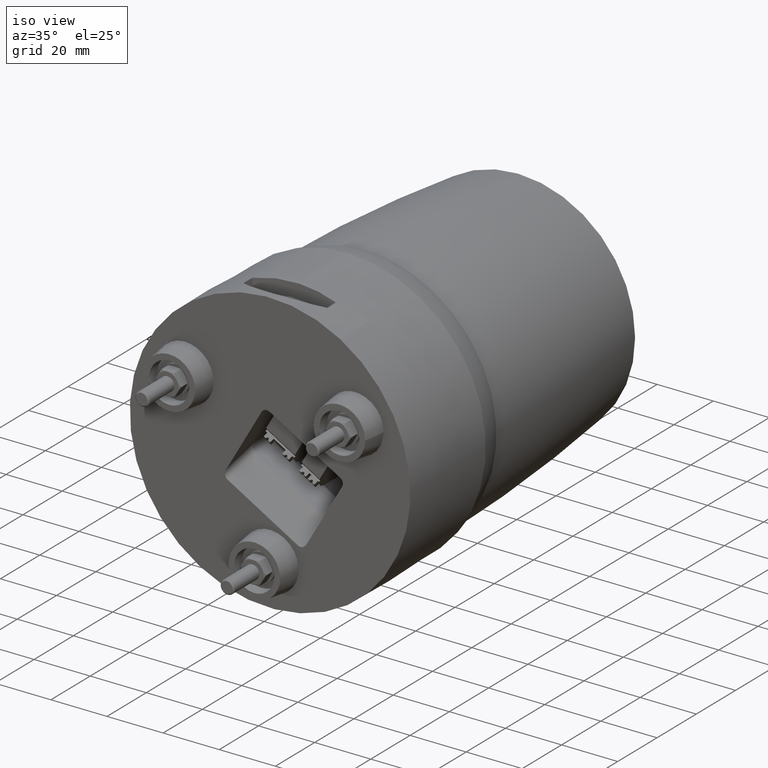
[diagram: clean part render]
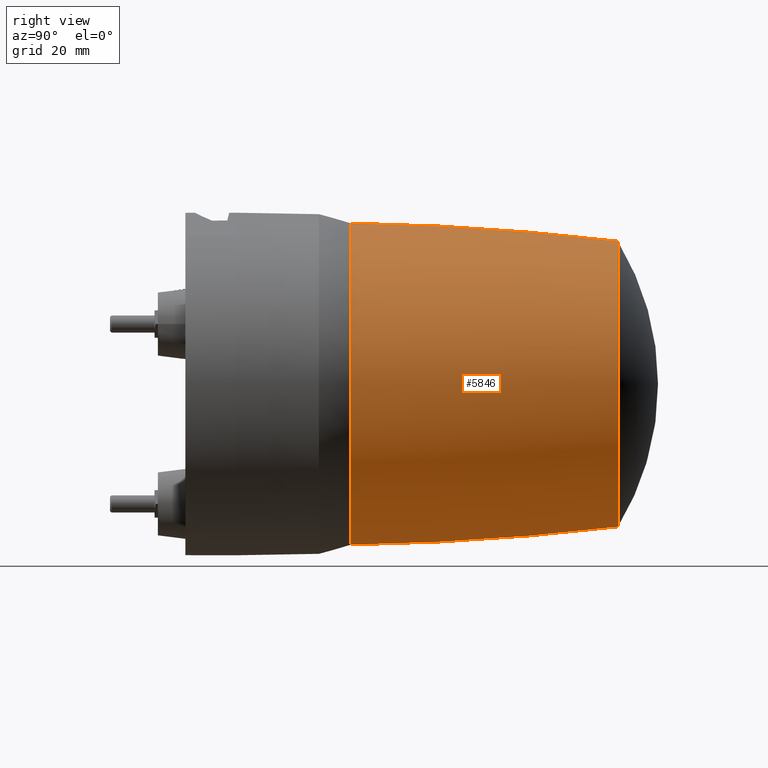
[diagram: tour spotlight — one face highlighted and labeled with its STEP entity id]
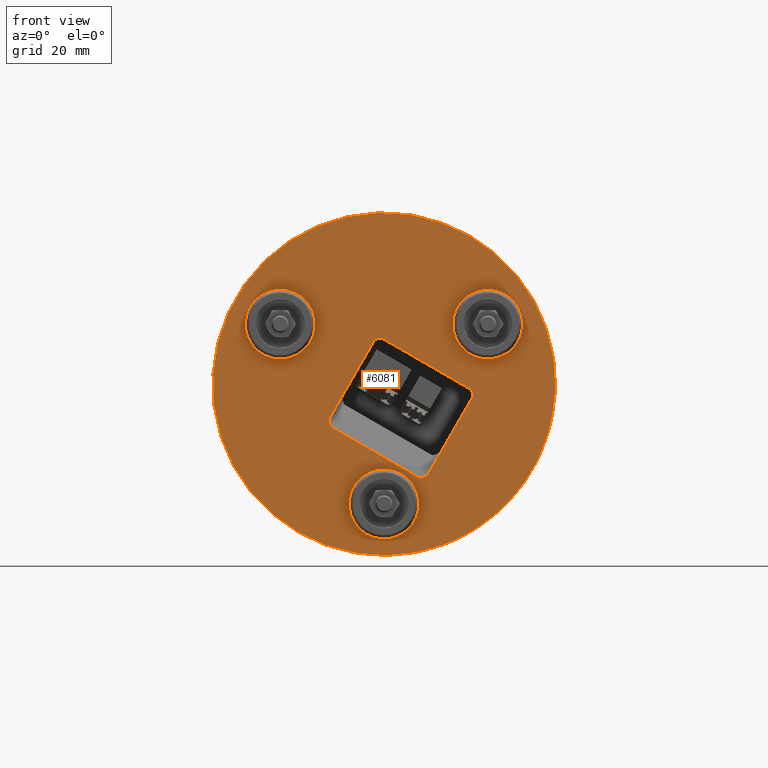
[diagram: tour spotlight — one face highlighted and labeled with its STEP entity id]
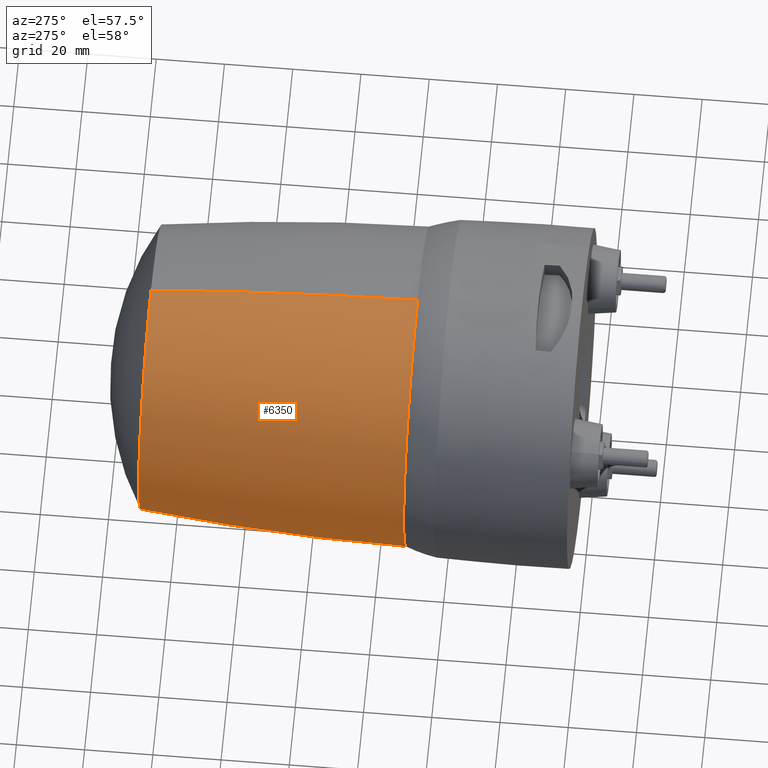
[diagram: tour spotlight — one face highlighted and labeled with its STEP entity id]
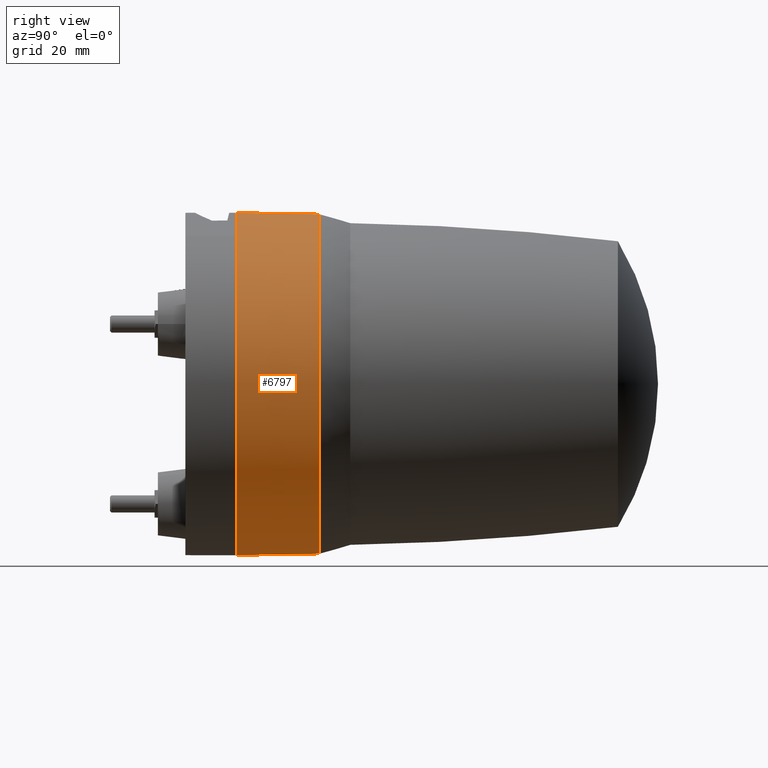
[diagram: tour spotlight — one face highlighted and labeled with its STEP entity id]
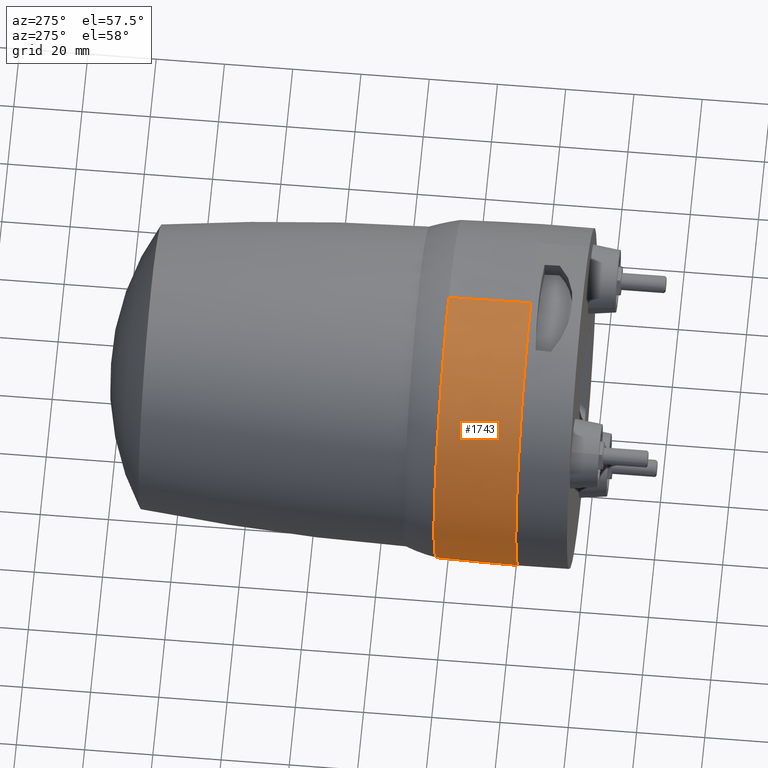
[diagram: tour spotlight — one face highlighted and labeled with its STEP entity id]
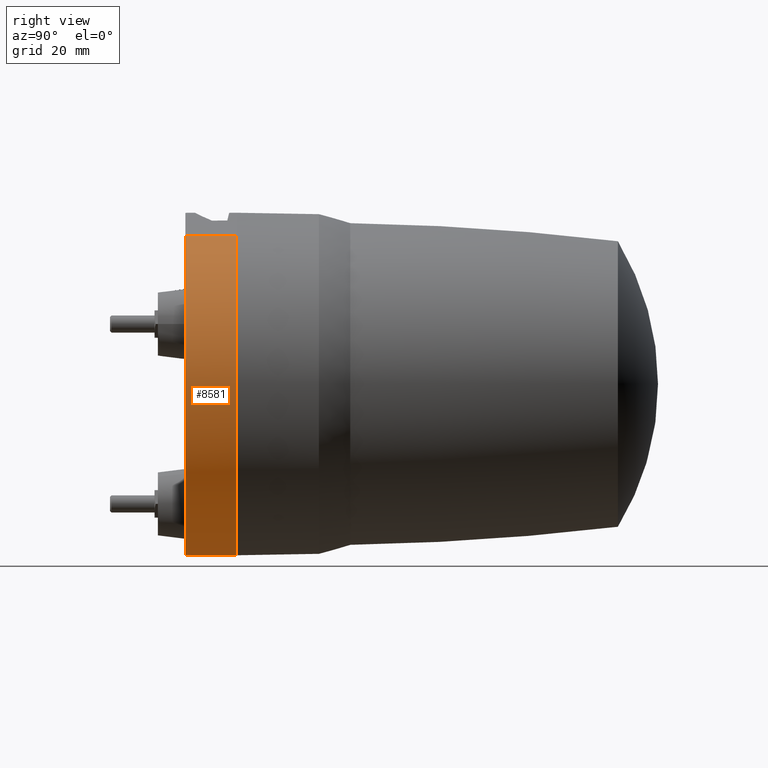
[diagram: tour spotlight — one face highlighted and labeled with its STEP entity id]
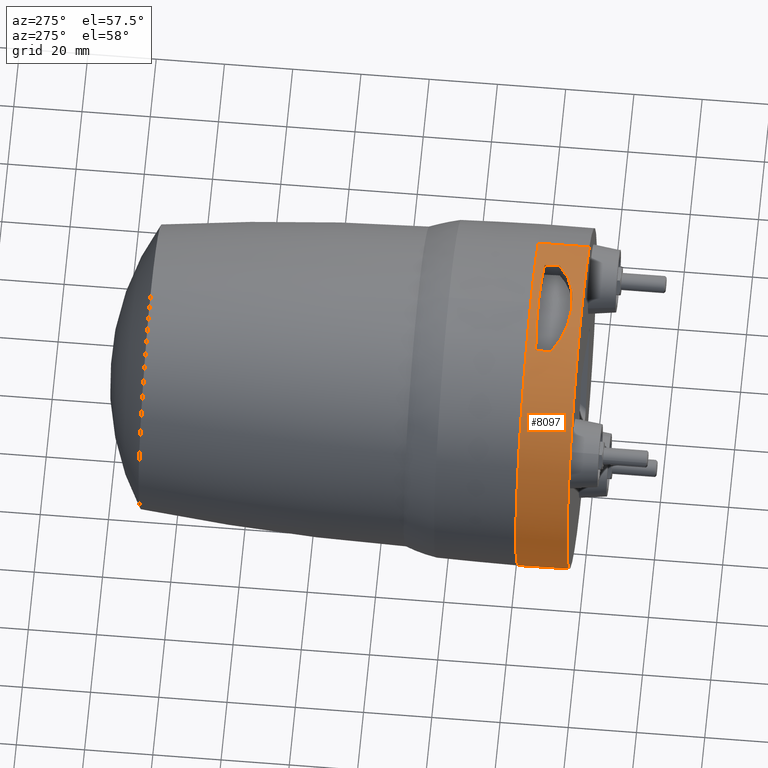
[diagram: tour spotlight — one face highlighted and labeled with its STEP entity id]
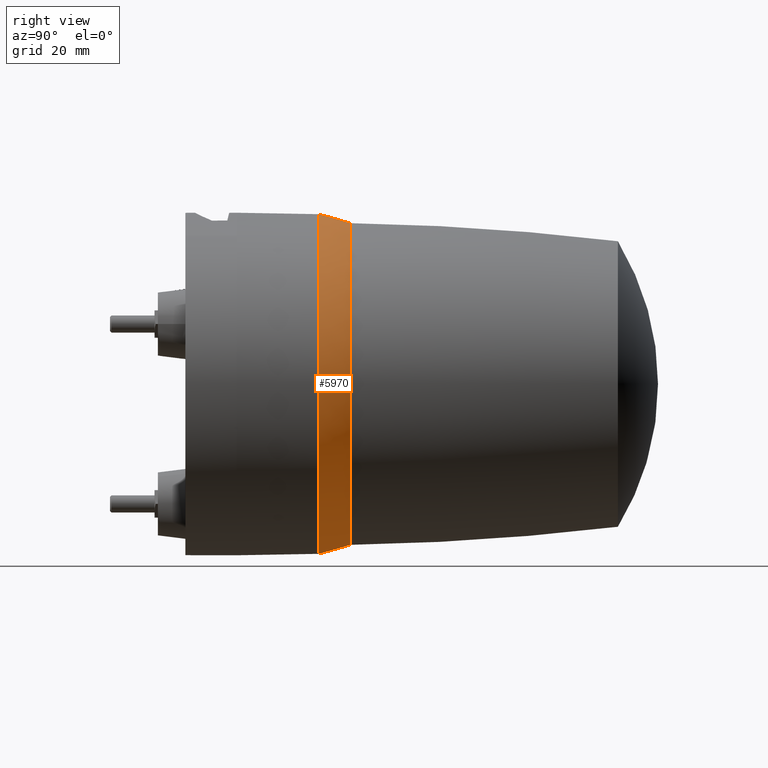
[diagram: tour spotlight — one face highlighted and labeled with its STEP entity id]
A machine part: a face-by-face anatomy tour. The part has 270 B-rep faces; the first image is the clean iso view, then the 8 largest visible faces are spotlighted one at a time (largest first), each with its STEP entity span.

Face 1 — right view, entity #5846. In plain terms, the highlighted toroidal blend (fillet) surface has major radius 712.949 mm and minor (blend) radius 760 mm.
Definition (entity closure, byte-faithful):
#421 = DIRECTION ( 'NONE',  ( 0.000000000000000000, 3.982591216739360048E-17, -1.000000000000000000 ) ) ;
#453 = ORIENTED_EDGE ( 'NONE', *, *, #8536, .F. ) ;
#503 = VERTEX_POINT ( 'NONE', #2207 ) ;
#598 = DIRECTION ( 'NONE',  ( 0.000000000000000000, 0.000000000000000000, -1.000000000000000000 ) ) ;
#755 = DIRECTION ( 'NONE',  ( 0.000000000000000000, -1.000000000000000000, 0.000000000000000000 ) ) ;
#901 = VERTEX_POINT ( 'NONE', #7473 ) ;
#1297 = CARTESIAN_POINT ( 'NONE',  ( 0.000000000000000000, 39.10551928601615401, -7.307193957557699784E-31 ) ) ;
#1670 = EDGE_CURVE ( 'NONE', #5041, #503, #3356, .T. ) ;
#1823 = DIRECTION ( 'NONE',  ( -1.000000000000000000, 4.877267585892220197E-33, -1.224646799147353207E-16 ) ) ;
#2072 = ORIENTED_EDGE ( 'NONE', *, *, #7259, .T. ) ;
#2207 = CARTESIAN_POINT ( 'NONE',  ( 0.000000000000000000, 129.2833406732575838, -41.68195516647119803 ) ) ;
#3282 = CARTESIAN_POINT ( 'NONE',  ( 0.000000000000000000, 39.10551928601612559, 712.9490543539769760 ) ) ;
#3356 = CIRCLE ( 'NONE', #4488, 760.0000000000000000 ) ;
#3390 = CIRCLE ( 'NONE', #5801, 41.68195516647119803 ) ;
#3707 = AXIS2_PLACEMENT_3D ( 'NONE', #1297, #4666, #421 ) ;
#3854 = CARTESIAN_POINT ( 'NONE',  ( 0.000000000000000000, 51.14189884939369790, -7.307193957557699784E-31 ) ) ;
#4488 = AXIS2_PLACEMENT_3D ( 'NONE', #3282, #6521, #598 ) ;
#4666 = DIRECTION ( 'NONE',  ( 0.000000000000000000, 1.000000000000000000, 3.982591216739360048E-17 ) ) ;
#4791 = CARTESIAN_POINT ( 'NONE',  ( -5.427486597387500927E-15, 129.2833406732575838, 41.68195516647119803 ) ) ;
#4844 = CIRCLE ( 'NONE', #5833, 760.0000000000000000 ) ;
#5041 = VERTEX_POINT ( 'NONE', #6298 ) ;
#5139 = DIRECTION ( 'NONE',  ( 0.000000000000000000, -1.000000000000000000, 0.000000000000000000 ) ) ;
#5389 = ORIENTED_EDGE ( 'NONE', *, *, #1670, .T. ) ;
#5801 = AXIS2_PLACEMENT_3D ( 'NONE', #6860, #755, #7565 ) ;
#5833 = AXIS2_PLACEMENT_3D ( 'NONE', #7928, #1823, #8507 ) ;
#5836 = EDGE_CURVE ( 'NONE', #901, #5901, #4844, .T. ) ;
#5846 = ADVANCED_FACE ( 'NONE', ( #8021 ), #7525, .T. ) ;
#5901 = VERTEX_POINT ( 'NONE', #4791 ) ;
#6273 = ORIENTED_EDGE ( 'NONE', *, *, #5836, .F. ) ;
#6298 = CARTESIAN_POINT ( 'NONE',  ( 0.000000000000000000, 51.14189884939369790, -46.95562754173349873 ) ) ;
#6521 = DIRECTION ( 'NONE',  ( 1.000000000000000000, -0.000000000000000000, 0.000000000000000000 ) ) ;
#6860 = CARTESIAN_POINT ( 'NONE',  ( 0.000000000000000000, 129.2833406732575838, 1.795706997007590157E-15 ) ) ;
#7073 = AXIS2_PLACEMENT_3D ( 'NONE', #3854, #5139, #8501 ) ;
#7259 = EDGE_CURVE ( 'NONE', #503, #5901, #3390, .T. ) ;
#7473 = CARTESIAN_POINT ( 'NONE',  ( -5.911168399144569153E-15, 51.14189884939369790, 46.95562754173349163 ) ) ;
#7525 = TOROIDAL_SURFACE ( 'NONE', #3707, -712.9490543539769760, 760.0000000000000000 ) ;
#7565 = DIRECTION ( 'NONE',  ( 0.000000000000000000, 0.000000000000000000, -1.000000000000000000 ) ) ;
#7772 = CIRCLE ( 'NONE', #7073, 46.95562754173349873 ) ;
#7832 = EDGE_LOOP ( 'NONE', ( #6273, #453, #5389, #2072 ) ) ;
#7928 = CARTESIAN_POINT ( 'NONE',  ( 8.731107773697301526E-14, 39.10551928601618243, -712.9490543539769760 ) ) ;
#8021 = FACE_OUTER_BOUND ( 'NONE', #7832, .T. ) ;
#8501 = DIRECTION ( 'NONE',  ( 0.000000000000000000, 0.000000000000000000, -1.000000000000000000 ) ) ;
#8507 = DIRECTION ( 'NONE',  ( -1.224646799147353207E-16, 0.000000000000000000, 1.000000000000000000 ) ) ;
#8536 = EDGE_CURVE ( 'NONE', #5041, #901, #7772, .T. ) ;

Face 2 — front view, entity #6081. In plain terms, the highlighted planar face has unit normal (0, -1, 0).
Definition (entity closure, byte-faithful):
#142 = ORIENTED_EDGE ( 'NONE', *, *, #4352, .T. ) ;
#176 = CARTESIAN_POINT ( 'NONE',  ( 12.29102191352310314, 2.999999999999995115, -27.28402618200388474 ) ) ;
#196 = DIRECTION ( 'NONE',  ( 1.017949417541609884E-16, -1.000000000000000000, 1.275512456123401821E-16 ) ) ;
#201 =( BOUNDED_CURVE ( )  B_SPLINE_CURVE ( 3, ( #6986, #4197, #176, #5569 ),
 .UNSPECIFIED., .F., .T. ) 
 B_SPLINE_CURVE_WITH_KNOTS ( ( 4, 4 ),
 ( 3.113851352034644915, 4.660961013869460601 ),
 .UNSPECIFIED. ) 
 CURVE ( )  GEOMETRIC_REPRESENTATION_ITEM ( )  RATIONAL_B_SPLINE_CURVE ( ( 1.000000000000000000, 0.8102876638024699707, 0.8102876638024699707, 1.000000000000000000 ) ) 
 REPRESENTATION_ITEM ( '' )  );
#202 = CARTESIAN_POINT ( 'NONE',  ( 7.125645922791279668E-16, 3.000000000000000000, 8.216151912067980378E-16 ) ) ;
#287 = VERTEX_POINT ( 'NONE', #3145 ) ;
#317 = CIRCLE ( 'NONE', #5412, 10.20015603023941964 ) ;
#408 = FACE_BOUND ( 'NONE', #476, .T. ) ;
#451 = DIRECTION ( 'NONE',  ( 0.000000000000000000, 1.275512456123404287E-16, 1.000000000000000000 ) ) ;
#454 = CARTESIAN_POINT ( 'NONE',  ( 42.43524477745734913, 3.000000000000000000, -24.50000001382199954 ) ) ;
#475 = DIRECTION ( 'NONE',  ( 0.000000000000000000, 1.275512456010996045E-16, 1.000000000000000000 ) ) ;
#476 = EDGE_LOOP ( 'NONE', ( #6382, #5585 ) ) ;
#500 = FACE_BOUND ( 'NONE', #3633, .T. ) ;
#504 = LINE ( 'NONE', #3185, #5759 ) ;
#597 =( BOUNDED_CURVE ( )  B_SPLINE_CURVE ( 3, ( #7633, #1699, #8259, #2889 ),
 .UNSPECIFIED., .F., .T. ) 
 B_SPLINE_CURVE_WITH_KNOTS ( ( 4, 4 ),
 ( 5.498396131378139984, 7.067974482981029816 ),
 .UNSPECIFIED. ) 
 CURVE ( )  GEOMETRIC_REPRESENTATION_ITEM ( )  RATIONAL_B_SPLINE_CURVE ( ( 1.000000000000000000, 0.8050248461985559656, 0.8050248461985559656, 1.000000000000000000 ) ) 
 REPRESENTATION_ITEM ( '' )  );
#619 = DIRECTION ( 'NONE',  ( 1.017949417541609884E-16, -1.000000000000000000, 1.275512456010991854E-16 ) ) ;
#703 = DIRECTION ( 'NONE',  ( 1.017949417541607912E-16, -1.000000000000000000, 1.275512456109955934E-16 ) ) ;
#704 = LINE ( 'NONE', #6019, #1972 ) ;
#722 = EDGE_CURVE ( 'NONE', #7785, #287, #7332, .T. ) ;
#834 = VERTEX_POINT ( 'NONE', #1534 ) ;
#957 = LINE ( 'NONE', #3749, #4907 ) ;
#1019 = AXIS2_PLACEMENT_3D ( 'NONE', #6200, #6867, #7490 ) ;
#1236 = DIRECTION ( 'NONE',  ( -1.000000000000000000, -1.017949417784775889E-16, 0.000000000000000000 ) ) ;
#1284 = CIRCLE ( 'NONE', #6514, 50.00000000000002842 ) ;
#1494 = VERTEX_POINT ( 'NONE', #4179 ) ;
#1534 = CARTESIAN_POINT ( 'NONE',  ( -25.21081111474535064, 3.000000000000000000, 8.666405763325039757 ) ) ;
#1580 = CARTESIAN_POINT ( 'NONE',  ( 10.05212458675350007, 3.000000000000000000, -27.25426747419535189 ) ) ;
#1699 = CARTESIAN_POINT ( 'NONE',  ( 25.95902521216428838, 3.000000000000003109, -1.955095421041245674 ) ) ;
#1721 = FACE_BOUND ( 'NONE', #5815, .T. ) ;
#1765 = EDGE_LOOP ( 'NONE', ( #7872, #2561 ) ) ;
#1786 = CARTESIAN_POINT ( 'NONE',  ( -2.379841073571868915, 3.000000000000003109, 13.45069496437858092 ) ) ;
#1828 = EDGE_CURVE ( 'NONE', #4338, #8510, #201, .T. ) ;
#1856 = FACE_BOUND ( 'NONE', #7986, .T. ) ;
#1866 = CIRCLE ( 'NONE', #1019, 10.20015602944804023 ) ;
#1921 = VERTEX_POINT ( 'NONE', #2097 ) ;
#1925 = CARTESIAN_POINT ( 'NONE',  ( 33.14683192544805479, 3.000000000000000000, -40.58800298307615151 ) ) ;
#1965 = VERTEX_POINT ( 'NONE', #6806 ) ;
#1972 = VECTOR ( 'NONE', #3348, 1000.000000000000227 ) ;
#2047 = EDGE_CURVE ( 'NONE', #1965, #4010, #704, .T. ) ;
#2097 = CARTESIAN_POINT ( 'NONE',  ( 24.94477580233754921, 3.000000000000000000, -1.369518250811852189 ) ) ;
#2130 = ORIENTED_EDGE ( 'NONE', *, *, #6659, .F. ) ;
#2411 = VERTEX_POINT ( 'NONE', #8286 ) ;
#2493 = DIRECTION ( 'NONE',  ( 1.017949417541609884E-16, -1.000000000000000000, 1.275512456010993826E-16 ) ) ;
#2561 = ORIENTED_EDGE ( 'NONE', *, *, #8325, .T. ) ;
#2566 = VECTOR ( 'NONE', #4447, 1000.000000000000000 ) ;
#2568 = PLANE ( 'NONE',  #2997 ) ;
#2656 = CARTESIAN_POINT ( 'NONE',  ( -0.2350317275569270004, 3.000000000000000000, 13.16805041565109846 ) ) ;
#2692 = AXIS2_PLACEMENT_3D ( 'NONE', #8157, #5461, #5296 ) ;
#2707 = AXIS2_PLACEMENT_3D ( 'NONE', #3914, #2493, #475 ) ;
#2720 = EDGE_CURVE ( 'NONE', #8510, #5767, #504, .T. ) ;
#2889 = CARTESIAN_POINT ( 'NONE',  ( 25.67638066343684855, 3.000000000000000000, -4.099904767056184340 ) ) ;
#2992 = ORIENTED_EDGE ( 'NONE', *, *, #5851, .F. ) ;
#2997 = AXIS2_PLACEMENT_3D ( 'NONE', #454, #3090, #1236 ) ;
#3090 = DIRECTION ( 'NONE',  ( 1.017949417784775889E-16, -1.000000000000000000, 1.173735987859451769E-16 ) ) ;
#3145 = CARTESIAN_POINT ( 'NONE',  ( 20.11073310858724739, 3.000000000000000000, 17.49999999326190192 ) ) ;
#3185 = CARTESIAN_POINT ( 'NONE',  ( 21.03259633168629961, 3.000000000000000000, -12.14317516299012034 ) ) ;
#3193 = ORIENTED_EDGE ( 'NONE', *, *, #5554, .F. ) ;
#3292 = LINE ( 'NONE', #1925, #2566 ) ;
#3348 = DIRECTION ( 'NONE',  ( 0.5000000002820810252, 1.525459891324350004E-16, 0.8660254036215790929 ) ) ;
#3492 = EDGE_CURVE ( 'NONE', #1921, #5767, #597, .T. ) ;
#3546 = CARTESIAN_POINT ( 'NONE',  ( 30.31088913792779849, 3.000000000000000000, 17.49999998973280313 ) ) ;
#3562 = CARTESIAN_POINT ( 'NONE',  ( -16.35077699371500159, 2.999999999999995115, -10.74767586039591549 ) ) ;
#3633 = EDGE_LOOP ( 'NONE', ( #8517, #2992 ) ) ;
#3749 = CARTESIAN_POINT ( 'NONE',  ( -3.876012430565844991, 3.000000000000000000, 15.27017160622879999 ) ) ;
#3760 = CARTESIAN_POINT ( 'NONE',  ( 25.00000001410409922, 3.000000000000007994, 43.30127018107892667 ) ) ;
#3778 = ORIENTED_EDGE ( 'NONE', *, *, #4841, .T. ) ;
#3781 = CARTESIAN_POINT ( 'NONE',  ( 40.51104516726829985, 3.000000000000000000, 17.49999998620370079 ) ) ;
#3864 =( BOUNDED_CURVE ( )  B_SPLINE_CURVE ( 3, ( #7891, #1786, #5862, #4487 ),
 .UNSPECIFIED., .F., .T. ) 
 B_SPLINE_CURVE_WITH_KNOTS ( ( 4, 4 ),
 ( 5.498396131378139984, 7.067974482981029816 ),
 .UNSPECIFIED. ) 
 CURVE ( )  GEOMETRIC_REPRESENTATION_ITEM ( )  RATIONAL_B_SPLINE_CURVE ( ( 1.000000000000000000, 0.8050248461985559656, 0.8050248461985559656, 1.000000000000000000 ) ) 
 REPRESENTATION_ITEM ( '' )  );
#3914 = CARTESIAN_POINT ( 'NONE',  ( -30.31088912675524938, 3.000000000000000000, 17.50000000987284920 ) ) ;
#3967 = EDGE_CURVE ( 'NONE', #287, #7785, #7847, .T. ) ;
#4010 = VERTEX_POINT ( 'NONE', #6295 ) ;
#4030 = DIRECTION ( 'NONE',  ( 0.000000000000000000, 1.275512456123404287E-16, 1.000000000000000000 ) ) ;
#4144 = ORIENTED_EDGE ( 'NONE', *, *, #2047, .T. ) ;
#4173 = ORIENTED_EDGE ( 'NONE', *, *, #4888, .F. ) ;
#4179 = CARTESIAN_POINT ( 'NONE',  ( -15.20555653463759960, 3.000000000000000000, -12.67173846868521991 ) ) ;
#4197 = CARTESIAN_POINT ( 'NONE',  ( 11.04811015143738118, 2.999999999999995115, -27.82930000850713270 ) ) ;
#4338 = VERTEX_POINT ( 'NONE', #1580 ) ;
#4352 = EDGE_CURVE ( 'NONE', #8644, #1921, #957, .T. ) ;
#4447 = DIRECTION ( 'NONE',  ( 0.8660254036215786488, 3.823967277254768365E-18, -0.5000000002820818024 ) ) ;
#4456 = DIRECTION ( 'NONE',  ( 0.8660254036215786488, 2.947020611425958334E-17, -0.5000000002820818024 ) ) ;
#4487 = CARTESIAN_POINT ( 'NONE',  ( -0.2350317275569270004, 3.000000000000000000, 13.16805041565109846 ) ) ;
#4692 = CARTESIAN_POINT ( 'NONE',  ( -1.117252554636979909E-08, 3.000000000000000000, -34.99999999960564878 ) ) ;
#4782 = CARTESIAN_POINT ( 'NONE',  ( -25.00000001410410277, 2.999999999999992450, -43.30127018107895509 ) ) ;
#4841 = EDGE_CURVE ( 'NONE', #4010, #8644, #3864, .T. ) ;
#4868 = ORIENTED_EDGE ( 'NONE', *, *, #1828, .F. ) ;
#4881 = EDGE_CURVE ( 'NONE', #834, #5107, #5670, .T. ) ;
#4888 = EDGE_CURVE ( 'NONE', #1494, #4338, #3292, .T. ) ;
#4907 = VECTOR ( 'NONE', #4456, 1000.000000000000000 ) ;
#4956 = CIRCLE ( 'NONE', #2692, 50.00000000000002842 ) ;
#5071 = AXIS2_PLACEMENT_3D ( 'NONE', #7433, #5321, #4030 ) ;
#5107 = VERTEX_POINT ( 'NONE', #5589 ) ;
#5147 = CARTESIAN_POINT ( 'NONE',  ( 25.67638066343684855, 3.000000000000000000, -4.099904767056184340 ) ) ;
#5254 = ORIENTED_EDGE ( 'NONE', *, *, #3492, .T. ) ;
#5296 = DIRECTION ( 'NONE',  ( -0.5000000002820818024, -1.561251128379125399E-16, -0.8660254036215786488 ) ) ;
#5321 = DIRECTION ( 'NONE',  ( 1.017949417541609884E-16, -1.000000000000000000, 1.275512456123401821E-16 ) ) ;
#5412 = AXIS2_PLACEMENT_3D ( 'NONE', #7287, #619, #6927 ) ;
#5461 = DIRECTION ( 'NONE',  ( 1.035845036079089825E-16, -1.000000000000000000, 1.204732107954749883E-16 ) ) ;
#5554 = EDGE_CURVE ( 'NONE', #5107, #834, #317, .T. ) ;
#5569 = CARTESIAN_POINT ( 'NONE',  ( 13.07347279079267999, 3.000000000000000000, -25.92878150916559932 ) ) ;
#5585 = ORIENTED_EDGE ( 'NONE', *, *, #722, .F. ) ;
#5589 = CARTESIAN_POINT ( 'NONE',  ( -35.41096713876520141, 3.000000000000000000, 26.33359425642070306 ) ) ;
#5603 = CARTESIAN_POINT ( 'NONE',  ( -16.20154209932147182, 2.999999999999995115, -12.09670593437346930 ) ) ;
#5670 = CIRCLE ( 'NONE', #2707, 10.20015603023941964 ) ;
#5696 = CARTESIAN_POINT ( 'NONE',  ( -15.56832611644539988, 3.000000000000000000, -9.392431187557612304 ) ) ;
#5759 = VECTOR ( 'NONE', #6120, 1000.000000000000000 ) ;
#5767 = VERTEX_POINT ( 'NONE', #5147 ) ;
#5802 = CARTESIAN_POINT ( 'NONE',  ( 13.07347279079267999, 3.000000000000000000, -25.92878150916559932 ) ) ;
#5815 = EDGE_LOOP ( 'NONE', ( #7598, #3193 ) ) ;
#5851 = EDGE_CURVE ( 'NONE', #7366, #2411, #1866, .T. ) ;
#5862 = CARTESIAN_POINT ( 'NONE',  ( -1.249281137383720042, 3.000000000000003109, 13.75362758588051726 ) ) ;
#6019 = CARTESIAN_POINT ( 'NONE',  ( -16.89761542756110302, 3.000000000000000000, -11.69482781063627996 ) ) ;
#6060 = VERTEX_POINT ( 'NONE', #3760 ) ;
#6081 = ADVANCED_FACE ( 'NONE', ( #500, #408, #1721, #1856, #7870 ), #2568, .T. ) ;
#6120 = DIRECTION ( 'NONE',  ( 0.5000000002820818024, 1.525459891324349264E-16, 0.8660254036215786488 ) ) ;
#6200 = CARTESIAN_POINT ( 'NONE',  ( -1.117252554636979909E-08, 3.000000000000000000, -34.99999999960564878 ) ) ;
#6217 = DIRECTION ( 'NONE',  ( 1.035845036079089825E-16, -1.000000000000000000, 1.204732107954749883E-16 ) ) ;
#6295 = CARTESIAN_POINT ( 'NONE',  ( -2.965418243801264619, 3.000000000000000000, 12.43644555455179912 ) ) ;
#6382 = ORIENTED_EDGE ( 'NONE', *, *, #3967, .F. ) ;
#6514 = AXIS2_PLACEMENT_3D ( 'NONE', #202, #6217, #8295 ) ;
#6659 = EDGE_CURVE ( 'NONE', #1965, #1494, #7943, .T. ) ;
#6806 = CARTESIAN_POINT ( 'NONE',  ( -15.56832611644539988, 3.000000000000000000, -9.392431187557612304 ) ) ;
#6867 = DIRECTION ( 'NONE',  ( 1.017949417541609884E-16, -1.000000000000000000, 1.275512456109953715E-16 ) ) ;
#6927 = DIRECTION ( 'NONE',  ( 1.020409964808796836E-15, 1.275512456010996045E-16, 1.000000000000000000 ) ) ;
#6986 = CARTESIAN_POINT ( 'NONE',  ( 10.05212458675350007, 3.000000000000000000, -27.25426747419535189 ) ) ;
#7030 = EDGE_CURVE ( 'NONE', #7272, #6060, #1284, .T. ) ;
#7074 = CARTESIAN_POINT ( 'NONE',  ( -5.100078028704530198, 3.000000000000000000, -43.83359424205150390 ) ) ;
#7272 = VERTEX_POINT ( 'NONE', #4782 ) ;
#7287 = CARTESIAN_POINT ( 'NONE',  ( -30.31088912675524938, 3.000000000000000000, 17.50000000987284920 ) ) ;
#7332 = CIRCLE ( 'NONE', #5071, 10.20015602934050136 ) ;
#7366 = VERTEX_POINT ( 'NONE', #7074 ) ;
#7433 = CARTESIAN_POINT ( 'NONE',  ( 30.31088913792779849, 3.000000000000000000, 17.49999998973280313 ) ) ;
#7490 = DIRECTION ( 'NONE',  ( 8.881784197391207963E-16, 1.275512456109956673E-16, 1.000000000000000000 ) ) ;
#7571 = EDGE_CURVE ( 'NONE', #2411, #7366, #8215, .T. ) ;
#7594 = CARTESIAN_POINT ( 'NONE',  ( -15.20555653463759960, 3.000000000000000000, -12.67173846868521991 ) ) ;
#7598 = ORIENTED_EDGE ( 'NONE', *, *, #4881, .F. ) ;
#7633 = CARTESIAN_POINT ( 'NONE',  ( 24.94477580233754921, 3.000000000000000000, -1.369518250811852189 ) ) ;
#7713 = AXIS2_PLACEMENT_3D ( 'NONE', #3546, #196, #451 ) ;
#7785 = VERTEX_POINT ( 'NONE', #3781 ) ;
#7847 = CIRCLE ( 'NONE', #7713, 10.20015602934050136 ) ;
#7870 = FACE_OUTER_BOUND ( 'NONE', #1765, .T. ) ;
#7872 = ORIENTED_EDGE ( 'NONE', *, *, #7030, .T. ) ;
#7891 = CARTESIAN_POINT ( 'NONE',  ( -2.965418243801264619, 3.000000000000000000, 12.43644555455179912 ) ) ;
#7923 = AXIS2_PLACEMENT_3D ( 'NONE', #4692, #703, #8050 ) ;
#7943 =( BOUNDED_CURVE ( )  B_SPLINE_CURVE ( 3, ( #5696, #3562, #5603, #7594 ),
 .UNSPECIFIED., .F., .T. ) 
 B_SPLINE_CURVE_WITH_KNOTS ( ( 4, 4 ),
 ( 4.763816946899919635, 6.310926608734740206 ),
 .UNSPECIFIED. ) 
 CURVE ( )  GEOMETRIC_REPRESENTATION_ITEM ( )  RATIONAL_B_SPLINE_CURVE ( ( 1.000000000000000000, 0.8102876638024699707, 0.8102876638024699707, 1.000000000000000000 ) ) 
 REPRESENTATION_ITEM ( '' )  );
#7986 = EDGE_LOOP ( 'NONE', ( #5254, #8103, #4868, #4173, #2130, #4144, #3778, #142 ) ) ;
#8050 = DIRECTION ( 'NONE',  ( 0.000000000000000000, 1.275512456109956673E-16, 1.000000000000000000 ) ) ;
#8103 = ORIENTED_EDGE ( 'NONE', *, *, #2720, .F. ) ;
#8157 = CARTESIAN_POINT ( 'NONE',  ( 7.125645922791279668E-16, 3.000000000000000000, 8.216151912067980378E-16 ) ) ;
#8215 = CIRCLE ( 'NONE', #7923, 10.20015602944804023 ) ;
#8259 = CARTESIAN_POINT ( 'NONE',  ( 26.26195783366620873, 3.000000000000003109, -3.085655357229396323 ) ) ;
#8286 = CARTESIAN_POINT ( 'NONE',  ( 5.100078006359479943, 3.000000000000000000, -26.16640575715985051 ) ) ;
#8295 = DIRECTION ( 'NONE',  ( -0.5000000002820818024, -1.561251128379125399E-16, -0.8660254036215786488 ) ) ;
#8325 = EDGE_CURVE ( 'NONE', #6060, #7272, #4956, .T. ) ;
#8510 = VERTEX_POINT ( 'NONE', #5802 ) ;
#8517 = ORIENTED_EDGE ( 'NONE', *, *, #7571, .F. ) ;
#8644 = VERTEX_POINT ( 'NONE', #2656 ) ;

Face 3 — auxiliary view, entity #6350. In plain terms, the highlighted toroidal blend (fillet) surface has major radius 712.949 mm and minor (blend) radius 760 mm.
Definition (entity closure, byte-faithful):
#503 = VERTEX_POINT ( 'NONE', #2207 ) ;
#598 = DIRECTION ( 'NONE',  ( 0.000000000000000000, 0.000000000000000000, -1.000000000000000000 ) ) ;
#901 = VERTEX_POINT ( 'NONE', #7473 ) ;
#1055 = ORIENTED_EDGE ( 'NONE', *, *, #5836, .T. ) ;
#1228 = ORIENTED_EDGE ( 'NONE', *, *, #4215, .T. ) ;
#1325 = CARTESIAN_POINT ( 'NONE',  ( 0.000000000000000000, 51.14189884939369790, -7.307193957557699784E-31 ) ) ;
#1584 = CARTESIAN_POINT ( 'NONE',  ( 0.000000000000000000, 39.10551928601615401, -7.307193957557699784E-31 ) ) ;
#1670 = EDGE_CURVE ( 'NONE', #5041, #503, #3356, .T. ) ;
#1823 = DIRECTION ( 'NONE',  ( -1.000000000000000000, 4.877267585892220197E-33, -1.224646799147353207E-16 ) ) ;
#1991 = DIRECTION ( 'NONE',  ( 0.000000000000000000, 0.000000000000000000, -1.000000000000000000 ) ) ;
#2207 = CARTESIAN_POINT ( 'NONE',  ( 0.000000000000000000, 129.2833406732575838, -41.68195516647119803 ) ) ;
#2782 = DIRECTION ( 'NONE',  ( 0.000000000000000000, -1.000000000000000000, 0.000000000000000000 ) ) ;
#3096 = ORIENTED_EDGE ( 'NONE', *, *, #4130, .F. ) ;
#3282 = CARTESIAN_POINT ( 'NONE',  ( 0.000000000000000000, 39.10551928601612559, 712.9490543539769760 ) ) ;
#3356 = CIRCLE ( 'NONE', #4488, 760.0000000000000000 ) ;
#3420 = TOROIDAL_SURFACE ( 'NONE', #8374, -712.9490543539769760, 760.0000000000000000 ) ;
#3617 = CIRCLE ( 'NONE', #4753, 41.68195516647119803 ) ;
#3620 = DIRECTION ( 'NONE',  ( 0.000000000000000000, 3.982591216739360048E-17, -1.000000000000000000 ) ) ;
#3664 = DIRECTION ( 'NONE',  ( 0.000000000000000000, 1.000000000000000000, 3.982591216739360048E-17 ) ) ;
#3988 = DIRECTION ( 'NONE',  ( 0.000000000000000000, -1.000000000000000000, 0.000000000000000000 ) ) ;
#4130 = EDGE_CURVE ( 'NONE', #901, #5041, #8565, .T. ) ;
#4215 = EDGE_CURVE ( 'NONE', #5901, #503, #3617, .T. ) ;
#4488 = AXIS2_PLACEMENT_3D ( 'NONE', #3282, #6521, #598 ) ;
#4753 = AXIS2_PLACEMENT_3D ( 'NONE', #6945, #2782, #6899 ) ;
#4791 = CARTESIAN_POINT ( 'NONE',  ( -5.427486597387500927E-15, 129.2833406732575838, 41.68195516647119803 ) ) ;
#4844 = CIRCLE ( 'NONE', #5833, 760.0000000000000000 ) ;
#4955 = FACE_OUTER_BOUND ( 'NONE', #5163, .T. ) ;
#5041 = VERTEX_POINT ( 'NONE', #6298 ) ;
#5163 = EDGE_LOOP ( 'NONE', ( #3096, #1055, #1228, #5320 ) ) ;
#5320 = ORIENTED_EDGE ( 'NONE', *, *, #1670, .F. ) ;
#5833 = AXIS2_PLACEMENT_3D ( 'NONE', #7928, #1823, #8507 ) ;
#5836 = EDGE_CURVE ( 'NONE', #901, #5901, #4844, .T. ) ;
#5901 = VERTEX_POINT ( 'NONE', #4791 ) ;
#6298 = CARTESIAN_POINT ( 'NONE',  ( 0.000000000000000000, 51.14189884939369790, -46.95562754173349873 ) ) ;
#6350 = ADVANCED_FACE ( 'NONE', ( #4955 ), #3420, .T. ) ;
#6521 = DIRECTION ( 'NONE',  ( 1.000000000000000000, -0.000000000000000000, 0.000000000000000000 ) ) ;
#6595 = AXIS2_PLACEMENT_3D ( 'NONE', #1325, #3988, #1991 ) ;
#6899 = DIRECTION ( 'NONE',  ( 0.000000000000000000, 0.000000000000000000, -1.000000000000000000 ) ) ;
#6945 = CARTESIAN_POINT ( 'NONE',  ( 0.000000000000000000, 129.2833406732575838, 1.795706997007590157E-15 ) ) ;
#7473 = CARTESIAN_POINT ( 'NONE',  ( -5.911168399144569153E-15, 51.14189884939369790, 46.95562754173349163 ) ) ;
#7928 = CARTESIAN_POINT ( 'NONE',  ( 8.731107773697301526E-14, 39.10551928601618243, -712.9490543539769760 ) ) ;
#8374 = AXIS2_PLACEMENT_3D ( 'NONE', #1584, #3664, #3620 ) ;
#8507 = DIRECTION ( 'NONE',  ( -1.224646799147353207E-16, 0.000000000000000000, 1.000000000000000000 ) ) ;
#8565 = CIRCLE ( 'NONE', #6595, 46.95562754173349873 ) ;

Face 4 — right view, entity #6797. In plain terms, the highlighted conical surface has half-angle 1 deg.
Definition (entity closure, byte-faithful):
#330 = LINE ( 'NONE', #5804, #975 ) ;
#822 = ORIENTED_EDGE ( 'NONE', *, *, #4081, .F. ) ;
#975 = VECTOR ( 'NONE', #8503, 1000.000000000000000 ) ;
#1121 = CARTESIAN_POINT ( 'NONE',  ( 0.000000000000000000, 17.99999999999999289, -50.00000000000000000 ) ) ;
#1213 = AXIS2_PLACEMENT_3D ( 'NONE', #6963, #7540, #2218 ) ;
#1430 = CIRCLE ( 'NONE', #2981, 50.00000000000002842 ) ;
#1864 = DIRECTION ( 'NONE',  ( 9.491088622313179071E-17, -1.000000000000000000, 1.054500648109283878E-16 ) ) ;
#2044 = VERTEX_POINT ( 'NONE', #7468 ) ;
#2048 = ORIENTED_EDGE ( 'NONE', *, *, #5154, .F. ) ;
#2218 = DIRECTION ( 'NONE',  ( 0.000000000000000000, 0.000000000000000000, -1.000000000000000000 ) ) ;
#2383 = VERTEX_POINT ( 'NONE', #6961 ) ;
#2563 = EDGE_CURVE ( 'NONE', #5350, #4206, #330, .T. ) ;
#2651 = LINE ( 'NONE', #3272, #7011 ) ;
#2728 = AXIS2_PLACEMENT_3D ( 'NONE', #8518, #5208, #7848 ) ;
#2981 = AXIS2_PLACEMENT_3D ( 'NONE', #3904, #1864, #5197 ) ;
#3056 = CARTESIAN_POINT ( 'NONE',  ( -8.143595340332839632E-16, 18.00000000000000000, -9.389887899506111151E-16 ) ) ;
#3272 = CARTESIAN_POINT ( 'NONE',  ( 0.000000000000000000, 18.00000000000000355, -50.00000000000000000 ) ) ;
#3615 = VERTEX_POINT ( 'NONE', #1121 ) ;
#3851 = ORIENTED_EDGE ( 'NONE', *, *, #3977, .F. ) ;
#3904 = CARTESIAN_POINT ( 'NONE',  ( -8.143595340332839632E-16, 18.00000000000000000, -9.389887899506111151E-16 ) ) ;
#3977 = EDGE_CURVE ( 'NONE', #5350, #2383, #5875, .T. ) ;
#4081 = EDGE_CURVE ( 'NONE', #2383, #3615, #2651, .T. ) ;
#4206 = VERTEX_POINT ( 'NONE', #6063 ) ;
#4268 = AXIS2_PLACEMENT_3D ( 'NONE', #3056, #6394, #4270 ) ;
#4269 = ORIENTED_EDGE ( 'NONE', *, *, #5694, .F. ) ;
#4270 = DIRECTION ( 'NONE',  ( 0.5000000002820818024, 1.387778780781444936E-16, 0.8660254036215786488 ) ) ;
#5154 = EDGE_CURVE ( 'NONE', #3615, #2044, #1430, .T. ) ;
#5197 = DIRECTION ( 'NONE',  ( 0.5000000002820818024, 1.387778780781444936E-16, 0.8660254036215786488 ) ) ;
#5208 = DIRECTION ( 'NONE',  ( 0.000000000000000000, -1.000000000000000000, -6.938893903907229610E-17 ) ) ;
#5276 = DIRECTION ( 'NONE',  ( 0.000000000000000000, -0.9998476951563912696, -0.01745240643728182550 ) ) ;
#5286 = CONICAL_SURFACE ( 'NONE', #2728, 50.00000000000000000, 0.01745329251994153993 ) ;
#5350 = VERTEX_POINT ( 'NONE', #5876 ) ;
#5694 = EDGE_CURVE ( 'NONE', #2044, #4206, #6392, .T. ) ;
#5737 = FACE_OUTER_BOUND ( 'NONE', #5773, .T. ) ;
#5773 = EDGE_LOOP ( 'NONE', ( #3851, #7725, #4269, #2048, #822 ) ) ;
#5804 = CARTESIAN_POINT ( 'NONE',  ( 6.123233995736766085E-15, 17.99999999999999645, 50.00000000000000000 ) ) ;
#5875 = CIRCLE ( 'NONE', #1213, 49.58107844172399581 ) ;
#5876 = CARTESIAN_POINT ( 'NONE',  ( 6.097582448464940108E-15, 41.99999999992949995, 49.58107844172399581 ) ) ;
#6063 = CARTESIAN_POINT ( 'NONE',  ( 6.123233995736766085E-15, 18.00000000000000711, 50.00000000000000000 ) ) ;
#6392 = CIRCLE ( 'NONE', #4268, 50.00000000000002842 ) ;
#6394 = DIRECTION ( 'NONE',  ( 9.491088622313179071E-17, -1.000000000000000000, 1.054500648109283878E-16 ) ) ;
#6797 = ADVANCED_FACE ( 'NONE', ( #5737 ), #5286, .T. ) ;
#6961 = CARTESIAN_POINT ( 'NONE',  ( 0.000000000000000000, 41.99999999992949995, -49.58107844172399581 ) ) ;
#6963 = CARTESIAN_POINT ( 'NONE',  ( 0.000000000000000000, 41.99999999992949995, 2.015974442758114783E-15 ) ) ;
#7011 = VECTOR ( 'NONE', #5276, 1000.000000000000000 ) ;
#7468 = CARTESIAN_POINT ( 'NONE',  ( 25.00000001410409922, 18.00000000000000711, 43.30127018107892667 ) ) ;
#7540 = DIRECTION ( 'NONE',  ( 0.000000000000000000, 1.000000000000000000, 0.000000000000000000 ) ) ;
#7725 = ORIENTED_EDGE ( 'NONE', *, *, #2563, .T. ) ;
#7848 = DIRECTION ( 'NONE',  ( 0.000000000000000000, 6.938893903907228378E-17, -1.000000000000000000 ) ) ;
#8503 = DIRECTION ( 'NONE',  ( 2.137303368083576378E-18, -0.9998476951563912696, 0.01745240643728168672 ) ) ;
#8518 = CARTESIAN_POINT ( 'NONE',  ( 0.000000000000000000, 18.00000000000000000, 3.965258199912374980E-32 ) ) ;

Face 5 — auxiliary view, entity #1743. In plain terms, the highlighted conical surface has half-angle 1 deg.
Definition (entity closure, byte-faithful):
#218 = EDGE_CURVE ( 'NONE', #4206, #5130, #6333, .T. ) ;
#330 = LINE ( 'NONE', #5804, #975 ) ;
#404 = ORIENTED_EDGE ( 'NONE', *, *, #218, .F. ) ;
#975 = VECTOR ( 'NONE', #8503, 1000.000000000000000 ) ;
#1028 = AXIS2_PLACEMENT_3D ( 'NONE', #3698, #8615, #3780 ) ;
#1121 = CARTESIAN_POINT ( 'NONE',  ( 0.000000000000000000, 17.99999999999999289, -50.00000000000000000 ) ) ;
#1201 = CARTESIAN_POINT ( 'NONE',  ( -8.143595340332839632E-16, 18.00000000000000000, -9.389887899506111151E-16 ) ) ;
#1242 = CONICAL_SURFACE ( 'NONE', #1803, 50.00000000000000000, 0.01745329251994153993 ) ;
#1543 = ORIENTED_EDGE ( 'NONE', *, *, #2563, .F. ) ;
#1669 = AXIS2_PLACEMENT_3D ( 'NONE', #6139, #2768, #2101 ) ;
#1743 = ADVANCED_FACE ( 'NONE', ( #6664 ), #1242, .T. ) ;
#1803 = AXIS2_PLACEMENT_3D ( 'NONE', #7218, #8016, #4473 ) ;
#2101 = DIRECTION ( 'NONE',  ( 0.5000000002820818024, 1.387778780781444936E-16, 0.8660254036215786488 ) ) ;
#2220 = ORIENTED_EDGE ( 'NONE', *, *, #5821, .F. ) ;
#2309 = CARTESIAN_POINT ( 'NONE',  ( -25.00000001410409212, 17.99999999999999289, -43.30127018107893377 ) ) ;
#2383 = VERTEX_POINT ( 'NONE', #6961 ) ;
#2563 = EDGE_CURVE ( 'NONE', #5350, #4206, #330, .T. ) ;
#2651 = LINE ( 'NONE', #3272, #7011 ) ;
#2768 = DIRECTION ( 'NONE',  ( 9.491088622313179071E-17, -1.000000000000000000, 1.054500648109283878E-16 ) ) ;
#3148 = DIRECTION ( 'NONE',  ( 0.5000000002820818024, 1.387778780781444936E-16, 0.8660254036215786488 ) ) ;
#3272 = CARTESIAN_POINT ( 'NONE',  ( 0.000000000000000000, 18.00000000000000355, -50.00000000000000000 ) ) ;
#3615 = VERTEX_POINT ( 'NONE', #1121 ) ;
#3698 = CARTESIAN_POINT ( 'NONE',  ( 0.000000000000000000, 41.99999999992949995, 2.015974442758114783E-15 ) ) ;
#3780 = DIRECTION ( 'NONE',  ( 0.000000000000000000, 0.000000000000000000, -1.000000000000000000 ) ) ;
#3953 = DIRECTION ( 'NONE',  ( 9.491088622313179071E-17, -1.000000000000000000, 1.054500648109283878E-16 ) ) ;
#4081 = EDGE_CURVE ( 'NONE', #2383, #3615, #2651, .T. ) ;
#4206 = VERTEX_POINT ( 'NONE', #6063 ) ;
#4348 = EDGE_LOOP ( 'NONE', ( #1543, #7763, #7385, #2220, #404 ) ) ;
#4473 = DIRECTION ( 'NONE',  ( 0.000000000000000000, 6.938893903907228378E-17, -1.000000000000000000 ) ) ;
#5130 = VERTEX_POINT ( 'NONE', #2309 ) ;
#5276 = DIRECTION ( 'NONE',  ( 0.000000000000000000, -0.9998476951563912696, -0.01745240643728182550 ) ) ;
#5350 = VERTEX_POINT ( 'NONE', #5876 ) ;
#5688 = AXIS2_PLACEMENT_3D ( 'NONE', #1201, #3953, #3148 ) ;
#5804 = CARTESIAN_POINT ( 'NONE',  ( 6.123233995736766085E-15, 17.99999999999999645, 50.00000000000000000 ) ) ;
#5821 = EDGE_CURVE ( 'NONE', #5130, #3615, #6951, .T. ) ;
#5876 = CARTESIAN_POINT ( 'NONE',  ( 6.097582448464940108E-15, 41.99999999992949995, 49.58107844172399581 ) ) ;
#6063 = CARTESIAN_POINT ( 'NONE',  ( 6.123233995736766085E-15, 18.00000000000000711, 50.00000000000000000 ) ) ;
#6139 = CARTESIAN_POINT ( 'NONE',  ( -8.143595340332839632E-16, 18.00000000000000000, -9.389887899506111151E-16 ) ) ;
#6333 = CIRCLE ( 'NONE', #1669, 50.00000000000002842 ) ;
#6664 = FACE_OUTER_BOUND ( 'NONE', #4348, .T. ) ;
#6769 = EDGE_CURVE ( 'NONE', #2383, #5350, #7952, .T. ) ;
#6951 = CIRCLE ( 'NONE', #5688, 50.00000000000002842 ) ;
#6961 = CARTESIAN_POINT ( 'NONE',  ( 0.000000000000000000, 41.99999999992949995, -49.58107844172399581 ) ) ;
#7011 = VECTOR ( 'NONE', #5276, 1000.000000000000000 ) ;
#7218 = CARTESIAN_POINT ( 'NONE',  ( 0.000000000000000000, 18.00000000000000000, 3.965258199912374980E-32 ) ) ;
#7385 = ORIENTED_EDGE ( 'NONE', *, *, #4081, .T. ) ;
#7763 = ORIENTED_EDGE ( 'NONE', *, *, #6769, .F. ) ;
#7952 = CIRCLE ( 'NONE', #1028, 49.58107844172399581 ) ;
#8016 = DIRECTION ( 'NONE',  ( 0.000000000000000000, -1.000000000000000000, -6.938893903907229610E-17 ) ) ;
#8503 = DIRECTION ( 'NONE',  ( 2.137303368083576378E-18, -0.9998476951563912696, 0.01745240643728168672 ) ) ;
#8615 = DIRECTION ( 'NONE',  ( 0.000000000000000000, 1.000000000000000000, 0.000000000000000000 ) ) ;

Face 6 — right view, entity #8581. In plain terms, the highlighted cylindrical surface (partial cylindrical patch) has radius 50 mm, axis along (0, -1, 0).
Definition (entity closure, byte-faithful):
#182 = VECTOR ( 'NONE', #266, 1000.000000000000000 ) ;
#202 = CARTESIAN_POINT ( 'NONE',  ( 7.125645922791279668E-16, 3.000000000000000000, 8.216151912067980378E-16 ) ) ;
#266 = DIRECTION ( 'NONE',  ( 9.491088622313179071E-17, -1.000000000000000000, 1.054500648109283878E-16 ) ) ;
#336 = ORIENTED_EDGE ( 'NONE', *, *, #5821, .T. ) ;
#1121 = CARTESIAN_POINT ( 'NONE',  ( 0.000000000000000000, 17.99999999999999289, -50.00000000000000000 ) ) ;
#1147 = CARTESIAN_POINT ( 'NONE',  ( 25.00000001410410988, 10.00000000000000711, 43.30127018107894799 ) ) ;
#1201 = CARTESIAN_POINT ( 'NONE',  ( -8.143595340332839632E-16, 18.00000000000000000, -9.389887899506111151E-16 ) ) ;
#1284 = CIRCLE ( 'NONE', #6514, 50.00000000000002842 ) ;
#1430 = CIRCLE ( 'NONE', #2981, 50.00000000000002842 ) ;
#1864 = DIRECTION ( 'NONE',  ( 9.491088622313179071E-17, -1.000000000000000000, 1.054500648109283878E-16 ) ) ;
#2011 = ORIENTED_EDGE ( 'NONE', *, *, #6351, .F. ) ;
#2044 = VERTEX_POINT ( 'NONE', #7468 ) ;
#2309 = CARTESIAN_POINT ( 'NONE',  ( -25.00000001410409212, 17.99999999999999289, -43.30127018107893377 ) ) ;
#2451 = EDGE_LOOP ( 'NONE', ( #336, #7619, #3181, #3842, #2011 ) ) ;
#2526 = DIRECTION ( 'NONE',  ( 9.491088622313179071E-17, -1.000000000000000000, 1.054500648109283878E-16 ) ) ;
#2572 = CYLINDRICAL_SURFACE ( 'NONE', #3392, 50.00000000000002842 ) ;
#2901 = VECTOR ( 'NONE', #4604, 1000.000000000000000 ) ;
#2981 = AXIS2_PLACEMENT_3D ( 'NONE', #3904, #1864, #5197 ) ;
#3148 = DIRECTION ( 'NONE',  ( 0.5000000002820818024, 1.387778780781444936E-16, 0.8660254036215786488 ) ) ;
#3181 = ORIENTED_EDGE ( 'NONE', *, *, #4083, .T. ) ;
#3392 = AXIS2_PLACEMENT_3D ( 'NONE', #5328, #2526, #7302 ) ;
#3615 = VERTEX_POINT ( 'NONE', #1121 ) ;
#3760 = CARTESIAN_POINT ( 'NONE',  ( 25.00000001410409922, 3.000000000000007994, 43.30127018107892667 ) ) ;
#3842 = ORIENTED_EDGE ( 'NONE', *, *, #7030, .F. ) ;
#3904 = CARTESIAN_POINT ( 'NONE',  ( -8.143595340332839632E-16, 18.00000000000000000, -9.389887899506111151E-16 ) ) ;
#3943 = FACE_OUTER_BOUND ( 'NONE', #2451, .T. ) ;
#3953 = DIRECTION ( 'NONE',  ( 9.491088622313179071E-17, -1.000000000000000000, 1.054500648109283878E-16 ) ) ;
#4083 = EDGE_CURVE ( 'NONE', #2044, #6060, #4649, .T. ) ;
#4604 = DIRECTION ( 'NONE',  ( 9.491088622313179071E-17, -1.000000000000000000, 1.054500648109283878E-16 ) ) ;
#4649 = LINE ( 'NONE', #1147, #2901 ) ;
#4782 = CARTESIAN_POINT ( 'NONE',  ( -25.00000001410410277, 2.999999999999992450, -43.30127018107895509 ) ) ;
#5130 = VERTEX_POINT ( 'NONE', #2309 ) ;
#5154 = EDGE_CURVE ( 'NONE', #3615, #2044, #1430, .T. ) ;
#5197 = DIRECTION ( 'NONE',  ( 0.5000000002820818024, 1.387778780781444936E-16, 0.8660254036215786488 ) ) ;
#5328 = CARTESIAN_POINT ( 'NONE',  ( 2.118522938825960139E-30, 10.00000000000000000, 6.548161810916599098E-30 ) ) ;
#5688 = AXIS2_PLACEMENT_3D ( 'NONE', #1201, #3953, #3148 ) ;
#5821 = EDGE_CURVE ( 'NONE', #5130, #3615, #6951, .T. ) ;
#6060 = VERTEX_POINT ( 'NONE', #3760 ) ;
#6217 = DIRECTION ( 'NONE',  ( 1.035845036079089825E-16, -1.000000000000000000, 1.204732107954749883E-16 ) ) ;
#6321 = CARTESIAN_POINT ( 'NONE',  ( -25.00000001410410277, 9.999999999999992895, -43.30127018107895509 ) ) ;
#6351 = EDGE_CURVE ( 'NONE', #5130, #7272, #7652, .T. ) ;
#6514 = AXIS2_PLACEMENT_3D ( 'NONE', #202, #6217, #8295 ) ;
#6951 = CIRCLE ( 'NONE', #5688, 50.00000000000002842 ) ;
#7030 = EDGE_CURVE ( 'NONE', #7272, #6060, #1284, .T. ) ;
#7272 = VERTEX_POINT ( 'NONE', #4782 ) ;
#7302 = DIRECTION ( 'NONE',  ( -0.5000000002820818024, -1.387778780781444936E-16, -0.8660254036215786488 ) ) ;
#7468 = CARTESIAN_POINT ( 'NONE',  ( 25.00000001410409922, 18.00000000000000711, 43.30127018107892667 ) ) ;
#7619 = ORIENTED_EDGE ( 'NONE', *, *, #5154, .T. ) ;
#7652 = LINE ( 'NONE', #6321, #182 ) ;
#8295 = DIRECTION ( 'NONE',  ( -0.5000000002820818024, -1.561251128379125399E-16, -0.8660254036215786488 ) ) ;
#8581 = ADVANCED_FACE ( 'NONE', ( #3943 ), #2572, .T. ) ;

Face 7 — auxiliary view, entity #8097. In plain terms, the highlighted cylindrical surface (partial cylindrical patch) has radius 50 mm, axis along (0, -1, 0).
Definition (entity closure, byte-faithful):
#18 = CARTESIAN_POINT ( 'NONE',  ( -15.00000002631275642, 10.80150314573287851, 47.69696006257230181 ) ) ;
#182 = VECTOR ( 'NONE', #266, 1000.000000000000000 ) ;
#218 = EDGE_CURVE ( 'NONE', #4206, #5130, #6333, .T. ) ;
#261 = ORIENTED_EDGE ( 'NONE', *, *, #8118, .T. ) ;
#266 = DIRECTION ( 'NONE',  ( 9.491088622313179071E-17, -1.000000000000000000, 1.054500648109283878E-16 ) ) ;
#386 = ORIENTED_EDGE ( 'NONE', *, *, #218, .T. ) ;
#425 = VERTEX_POINT ( 'NONE', #18 ) ;
#469 = CARTESIAN_POINT ( 'NONE',  ( -9.980327550687039917, 15.56773800451528622, 49.05871357293521839 ) ) ;
#549 = CARTESIAN_POINT ( 'NONE',  ( 14.99999997368722759, 10.80150314573289627, 47.69696007912227742 ) ) ;
#600 = CARTESIAN_POINT ( 'NONE',  ( -9.259887699770182223, 7.511825484830128907, 49.15216227150341410 ) ) ;
#1115 = CARTESIAN_POINT ( 'NONE',  ( 9.257529781268701186, 7.540059581107133369, 49.13950626420973578 ) ) ;
#1147 = CARTESIAN_POINT ( 'NONE',  ( 25.00000001410410988, 10.00000000000000711, 43.30127018107894799 ) ) ;
#1178 = CARTESIAN_POINT ( 'NONE',  ( 14.99999997368722759, 10.80150314573289627, 47.69696007912227742 ) ) ;
#1246 = CARTESIAN_POINT ( 'NONE',  ( 11.08600661823414235, 8.345123032635745730, 48.75922468454577796 ) ) ;
#1552 = AXIS2_PLACEMENT_3D ( 'NONE', #3020, #2445, #3865 ) ;
#1669 = AXIS2_PLACEMENT_3D ( 'NONE', #6139, #2768, #2101 ) ;
#1707 = VERTEX_POINT ( 'NONE', #5145 ) ;
#1776 = CARTESIAN_POINT ( 'NONE',  ( 2.724295854353951718, 5.961326064922787715, 49.93032307881147602 ) ) ;
#1961 = CARTESIAN_POINT ( 'NONE',  ( 0.6843570214807584984, 5.827729607460678807, 49.99997661671059035 ) ) ;
#2043 = CARTESIAN_POINT ( 'NONE',  ( -14.83482143575179357, 15.25056449662250557, 47.74859236636571325 ) ) ;
#2044 = VERTEX_POINT ( 'NONE', #7468 ) ;
#2101 = DIRECTION ( 'NONE',  ( 0.5000000002820818024, 1.387778780781444936E-16, 0.8660254036215786488 ) ) ;
#2247 = CARTESIAN_POINT ( 'NONE',  ( -15.00000002631275642, 10.80150314573287851, 47.69696006257230181 ) ) ;
#2309 = CARTESIAN_POINT ( 'NONE',  ( -25.00000001410409212, 17.99999999999999289, -43.30127018107893377 ) ) ;
#2397 = CARTESIAN_POINT ( 'NONE',  ( -14.83482143575179357, 15.25056449662250557, 47.74859236636571325 ) ) ;
#2445 = DIRECTION ( 'NONE',  ( 9.491088622313179071E-17, -1.000000000000000000, 1.054500648109283878E-16 ) ) ;
#2486 = CARTESIAN_POINT ( 'NONE',  ( 3.395348633109253278, 6.040757702410794572, 49.88904888401565785 ) ) ;
#2487 = CARTESIAN_POINT ( 'NONE',  ( 14.83482138306901632, 15.25056449662245761, 47.74859238273356965 ) ) ;
#2533 = CARTESIAN_POINT ( 'NONE',  ( -5.370141760256062824, 6.379664420148343673, 49.71518746150537282 ) ) ;
#2573 =( BOUNDED_CURVE ( )  B_SPLINE_CURVE ( 3, ( #2247, #8321, #7032, #6373 ),
 .UNSPECIFIED., .F., .T. ) 
 B_SPLINE_CURVE_WITH_KNOTS ( ( 4, 4 ),
 ( 1.266103672779504086, 1.269564880168527976 ),
 .UNSPECIFIED. ) 
 CURVE ( )  GEOMETRIC_REPRESENTATION_ITEM ( )  RATIONAL_B_SPLINE_CURVE ( ( 1.000000000000000000, 0.9999990016705330165, 0.9999990016705330165, 1.000000000000000000 ) ) 
 REPRESENTATION_ITEM ( '' )  );
#2579 = CARTESIAN_POINT ( 'NONE',  ( 1.370514317477370625, 5.854779130951577315, 49.98580439646975293 ) ) ;
#2692 = AXIS2_PLACEMENT_3D ( 'NONE', #8157, #5461, #5296 ) ;
#2768 = DIRECTION ( 'NONE',  ( 9.491088622313179071E-17, -1.000000000000000000, 1.054500648109283878E-16 ) ) ;
#2901 = VECTOR ( 'NONE', #4604, 1000.000000000000000 ) ;
#3020 = CARTESIAN_POINT ( 'NONE',  ( 2.118522938825960139E-30, 10.00000000000000000, 6.548161810916599098E-30 ) ) ;
#3056 = CARTESIAN_POINT ( 'NONE',  ( -8.143595340332839632E-16, 18.00000000000000000, -9.389887899506111151E-16 ) ) ;
#3091 = ORIENTED_EDGE ( 'NONE', *, *, #5807, .T. ) ;
#3101 = CARTESIAN_POINT ( 'NONE',  ( 5.391311437138994300, 6.356631164936732858, 49.72641274570307957 ) ) ;
#3103 = CARTESIAN_POINT ( 'NONE',  ( -12.42977460354069130, 15.42921405194192097, 48.49580686070555657 ) ) ;
#3191 = CARTESIAN_POINT ( 'NONE',  ( 2.566895374392625051, 15.80099342006122498, 49.99782474435288293 ) ) ;
#3235 = CARTESIAN_POINT ( 'NONE',  ( -2.711636980675535380, 5.933817781321574891, 49.94428083619656178 ) ) ;
#3720 = ORIENTED_EDGE ( 'NONE', *, *, #6351, .T. ) ;
#3728 = FACE_OUTER_BOUND ( 'NONE', #4116, .T. ) ;
#3760 = CARTESIAN_POINT ( 'NONE',  ( 25.00000001410409922, 3.000000000000007994, 43.30127018107892667 ) ) ;
#3865 = DIRECTION ( 'NONE',  ( -0.5000000002820818024, -1.387778780781444936E-16, -0.8660254036215786488 ) ) ;
#3905 = CARTESIAN_POINT ( 'NONE',  ( 10.48653894625968697, 8.060785681601451813, 48.89197719943388165 ) ) ;
#4000 = CARTESIAN_POINT ( 'NONE',  ( 12.84001274575511253, 9.270597723025886694, 48.33818584720613387 ) ) ;
#4083 = EDGE_CURVE ( 'NONE', #2044, #6060, #4649, .T. ) ;
#4116 = EDGE_LOOP ( 'NONE', ( #8125, #7177, #386, #3720, #5494 ) ) ;
#4199 = CARTESIAN_POINT ( 'NONE',  ( 14.94497025599828888, 12.28372060020816114, 47.71426612467566741 ) ) ;
#4206 = VERTEX_POINT ( 'NONE', #6063 ) ;
#4268 = AXIS2_PLACEMENT_3D ( 'NONE', #3056, #6394, #4270 ) ;
#4270 = DIRECTION ( 'NONE',  ( 0.5000000002820818024, 1.387778780781444936E-16, 0.8660254036215786488 ) ) ;
#4433 = VERTEX_POINT ( 'NONE', #1178 ) ;
#4475 = CARTESIAN_POINT ( 'NONE',  ( -4.708664873635685311, 6.248618436164282031, 49.78227110074176665 ) ) ;
#4478 = CARTESIAN_POINT ( 'NONE',  ( 5.064021195439698531, 15.75255061985143534, 49.80536398693407563 ) ) ;
#4530 = CARTESIAN_POINT ( 'NONE',  ( 9.994570454539694282, 15.56666502143270137, 49.05432859563052261 ) ) ;
#4604 = DIRECTION ( 'NONE',  ( 9.491088622313179071E-17, -1.000000000000000000, 1.054500648109283878E-16 ) ) ;
#4643 = ORIENTED_EDGE ( 'NONE', *, *, #7396, .T. ) ;
#4649 = LINE ( 'NONE', #1147, #2901 ) ;
#4782 = CARTESIAN_POINT ( 'NONE',  ( -25.00000001410410277, 2.999999999999992450, -43.30127018107895509 ) ) ;
#4956 = CIRCLE ( 'NONE', #2692, 50.00000000000002842 ) ;
#5009 = ORIENTED_EDGE ( 'NONE', *, *, #6323, .T. ) ;
#5130 = VERTEX_POINT ( 'NONE', #2309 ) ;
#5145 = CARTESIAN_POINT ( 'NONE',  ( 14.83482138306901632, 15.25056449662245761, 47.74859238273356965 ) ) ;
#5148 = FACE_BOUND ( 'NONE', #7732, .T. ) ;
#5239 = CARTESIAN_POINT ( 'NONE',  ( -12.81340284523904494, 9.287968371895985342, 48.33376155865206414 ) ) ;
#5296 = DIRECTION ( 'NONE',  ( -0.5000000002820818024, -1.561251128379125399E-16, -0.8660254036215786488 ) ) ;
#5298 = VERTEX_POINT ( 'NONE', #2043 ) ;
#5336 = CARTESIAN_POINT ( 'NONE',  ( -13.93015161262352919, 10.00665390550459755, 48.02381362337163040 ) ) ;
#5461 = DIRECTION ( 'NONE',  ( 1.035845036079089825E-16, -1.000000000000000000, 1.204732107954749883E-16 ) ) ;
#5494 = ORIENTED_EDGE ( 'NONE', *, *, #8325, .F. ) ;
#5518 =( BOUNDED_CURVE ( )  B_SPLINE_CURVE ( 3, ( #7031, #7564, #4199, #6279 ),
 .UNSPECIFIED., .F., .F. ) 
 B_SPLINE_CURVE_WITH_KNOTS ( ( 4, 4 ),
 ( 5.013620427011059810, 5.017081634400089918 ),
 .UNSPECIFIED. ) 
 CURVE ( )  GEOMETRIC_REPRESENTATION_ITEM ( )  RATIONAL_B_SPLINE_CURVE ( ( 1.000000000000000000, 0.9999990016705330165, 0.9999990016705330165, 1.000000000000000000 ) ) 
 REPRESENTATION_ITEM ( '' )  );
#5590 = B_SPLINE_CURVE_WITH_KNOTS ( 'NONE', 3,
 ( #2397, #3103, #469, #6435, #7093, #3191, #4478, #4530, #7174, #2487 ),
 .UNSPECIFIED., .F., .F.,
 ( 4, 2, 2, 2, 4 ),
 ( 8.673617379884035472E-18, 0.007551324301956357371, 0.01510264860391270607, 0.02265397290586905477, 0.03020529720782540867 ),
 .UNSPECIFIED. ) ;
#5694 = EDGE_CURVE ( 'NONE', #2044, #4206, #6392, .T. ) ;
#5807 = EDGE_CURVE ( 'NONE', #4433, #425, #6006, .T. ) ;
#6006 = B_SPLINE_CURVE_WITH_KNOTS ( 'NONE', 3,
 ( #549, #7309, #4000, #1246, #3905, #1115, #6524, #6667, #3101, #2486, #1776, #2579, #1961, #8600, #3235, #4475, #2533, #7977, #8649, #600, #8693, #6570, #5239, #5336, #7173, #7269 ),
 .UNSPECIFIED., .F., .F.,
 ( 4, 2, 2, 2, 2, 2, 2, 2, 2, 2, 2, 2, 4 ),
 ( 1.734723475976807094E-18, 0.004054672121998857681, 0.006082008182998289124, 0.008109344243997720567, 0.01216401636599658345, 0.01419135242699601403, 0.01621868848799544460, 0.02027336060999430922, 0.02230069667099374153, 0.02432803273199317384, 0.02838270485399203846, 0.03041004091499147077, 0.03243737697599090308 ),
 .UNSPECIFIED. ) ;
#6060 = VERTEX_POINT ( 'NONE', #3760 ) ;
#6063 = CARTESIAN_POINT ( 'NONE',  ( 6.123233995736766085E-15, 18.00000000000000711, 50.00000000000000000 ) ) ;
#6139 = CARTESIAN_POINT ( 'NONE',  ( -8.143595340332839632E-16, 18.00000000000000000, -9.389887899506111151E-16 ) ) ;
#6279 = CARTESIAN_POINT ( 'NONE',  ( 14.99999997368722759, 10.80150314573289627, 47.69696007912227742 ) ) ;
#6321 = CARTESIAN_POINT ( 'NONE',  ( -25.00000001410410277, 9.999999999999992895, -43.30127018107895509 ) ) ;
#6323 = EDGE_CURVE ( 'NONE', #1707, #4433, #5518, .T. ) ;
#6333 = CIRCLE ( 'NONE', #1669, 50.00000000000002842 ) ;
#6351 = EDGE_CURVE ( 'NONE', #5130, #7272, #7652, .T. ) ;
#6373 = CARTESIAN_POINT ( 'NONE',  ( -14.83482143575179357, 15.25056449662250557, 47.74859236636571325 ) ) ;
#6392 = CIRCLE ( 'NONE', #4268, 50.00000000000002842 ) ;
#6394 = DIRECTION ( 'NONE',  ( 9.491088622313179071E-17, -1.000000000000000000, 1.054500648109283878E-16 ) ) ;
#6435 = CARTESIAN_POINT ( 'NONE',  ( -4.991679508713788849, 15.75473256362501573, 49.81412903115526802 ) ) ;
#6524 = CARTESIAN_POINT ( 'NONE',  ( 8.625693042515454323, 7.302933312807432742, 49.25465057305125782 ) ) ;
#6570 = CARTESIAN_POINT ( 'NONE',  ( -12.24129537811031199, 8.954700463654267750, 48.48209242016032761 ) ) ;
#6667 = CARTESIAN_POINT ( 'NONE',  ( 6.699154229324044252, 6.669937330925833407, 49.56625935815647921 ) ) ;
#7031 = CARTESIAN_POINT ( 'NONE',  ( 14.83482138306901632, 15.25056449662245761, 47.74859238273356965 ) ) ;
#7032 = CARTESIAN_POINT ( 'NONE',  ( -14.88991072348839495, 13.76674253104965295, 47.73147689329958610 ) ) ;
#7093 = CARTESIAN_POINT ( 'NONE',  ( -2.481441530946906227, 15.80207347611409574, 50.00213874384369461 ) ) ;
#7173 = CARTESIAN_POINT ( 'NONE',  ( -14.47520208086683624, 10.39262847791889932, 47.86200138145657945 ) ) ;
#7174 = CARTESIAN_POINT ( 'NONE',  ( 12.42998532395515099, 15.42919839542040883, 48.49574138990340799 ) ) ;
#7177 = ORIENTED_EDGE ( 'NONE', *, *, #5694, .T. ) ;
#7269 = CARTESIAN_POINT ( 'NONE',  ( -15.00000002631275642, 10.80150314573287851, 47.69696006257230181 ) ) ;
#7272 = VERTEX_POINT ( 'NONE', #4782 ) ;
#7309 = CARTESIAN_POINT ( 'NONE',  ( 13.95049417699168082, 9.983518692058865440, 48.02701438230432274 ) ) ;
#7396 = EDGE_CURVE ( 'NONE', #425, #5298, #2573, .T. ) ;
#7468 = CARTESIAN_POINT ( 'NONE',  ( 25.00000001410409922, 18.00000000000000711, 43.30127018107892667 ) ) ;
#7564 = CARTESIAN_POINT ( 'NONE',  ( 14.88991067082460340, 13.76674253104915024, 47.73147690972810153 ) ) ;
#7652 = LINE ( 'NONE', #6321, #182 ) ;
#7732 = EDGE_LOOP ( 'NONE', ( #3091, #4643, #261, #5009 ) ) ;
#7977 = CARTESIAN_POINT ( 'NONE',  ( -6.684550928517345447, 6.695490096472990871, 49.55557552629093720 ) ) ;
#8097 = ADVANCED_FACE ( 'NONE', ( #3728, #5148 ), #8508, .T. ) ;
#8118 = EDGE_CURVE ( 'NONE', #5298, #1707, #5590, .T. ) ;
#8125 = ORIENTED_EDGE ( 'NONE', *, *, #4083, .F. ) ;
#8157 = CARTESIAN_POINT ( 'NONE',  ( 7.125645922791279668E-16, 3.000000000000000000, 8.216151912067980378E-16 ) ) ;
#8321 = CARTESIAN_POINT ( 'NONE',  ( -14.94497030864298281, 12.28372060020890011, 47.71426610818635083 ) ) ;
#8325 = EDGE_CURVE ( 'NONE', #6060, #7272, #4956, .T. ) ;
#8508 = CYLINDRICAL_SURFACE ( 'NONE', #1552, 50.00000000000002842 ) ;
#8600 = CARTESIAN_POINT ( 'NONE',  ( -1.363582390510432729, 5.827710490325682002, 50.00004667879930054 ) ) ;
#8649 = CARTESIAN_POINT ( 'NONE',  ( -7.340258738200838629, 6.881351247690397521, 49.46251859439031762 ) ) ;
#8693 = CARTESIAN_POINT ( 'NONE',  ( -10.48458200810930663, 8.029592556666379721, 48.90320983329899462 ) ) ;

Face 8 — right view, entity #5970. In plain terms, the highlighted toroidal blend (fillet) surface has major radius 143.907 mm and minor (blend) radius 200 mm.
Definition (entity closure, byte-faithful):
#723 = DIRECTION ( 'NONE',  ( 0.000000000000000000, 3.982591216739360048E-17, -1.000000000000000000 ) ) ;
#901 = VERTEX_POINT ( 'NONE', #7473 ) ;
#1124 = EDGE_CURVE ( 'NONE', #2383, #5041, #7051, .T. ) ;
#1213 = AXIS2_PLACEMENT_3D ( 'NONE', #6963, #7540, #2218 ) ;
#2006 = FACE_OUTER_BOUND ( 'NONE', #4771, .T. ) ;
#2218 = DIRECTION ( 'NONE',  ( 0.000000000000000000, 0.000000000000000000, -1.000000000000000000 ) ) ;
#2383 = VERTEX_POINT ( 'NONE', #6961 ) ;
#2410 = DIRECTION ( 'NONE',  ( -1.224646799147353207E-16, 0.000000000000000000, 1.000000000000000000 ) ) ;
#2676 = ORIENTED_EDGE ( 'NONE', *, *, #8536, .T. ) ;
#3026 = DIRECTION ( 'NONE',  ( -1.000000000000000000, 4.877267585892220197E-33, -1.224646799147353207E-16 ) ) ;
#3141 = AXIS2_PLACEMENT_3D ( 'NONE', #7107, #3026, #2410 ) ;
#3854 = CARTESIAN_POINT ( 'NONE',  ( 0.000000000000000000, 51.14189884939369790, -7.307193957557699784E-31 ) ) ;
#3880 = DIRECTION ( 'NONE',  ( 1.000000000000000000, -0.000000000000000000, 0.000000000000000000 ) ) ;
#3977 = EDGE_CURVE ( 'NONE', #5350, #2383, #5875, .T. ) ;
#4275 = TOROIDAL_SURFACE ( 'NONE', #4418, -143.9070329096475973, 200.0000000000000000 ) ;
#4418 = AXIS2_PLACEMENT_3D ( 'NONE', #6791, #7446, #723 ) ;
#4742 = ORIENTED_EDGE ( 'NONE', *, *, #3977, .T. ) ;
#4771 = EDGE_LOOP ( 'NONE', ( #5201, #4742, #5790, #2676 ) ) ;
#5041 = VERTEX_POINT ( 'NONE', #6298 ) ;
#5139 = DIRECTION ( 'NONE',  ( 0.000000000000000000, -1.000000000000000000, 0.000000000000000000 ) ) ;
#5201 = ORIENTED_EDGE ( 'NONE', *, *, #6821, .F. ) ;
#5350 = VERTEX_POINT ( 'NONE', #5876 ) ;
#5497 = AXIS2_PLACEMENT_3D ( 'NONE', #5918, #3880, #5514 ) ;
#5514 = DIRECTION ( 'NONE',  ( 0.000000000000000000, 0.000000000000000000, -1.000000000000000000 ) ) ;
#5790 = ORIENTED_EDGE ( 'NONE', *, *, #1124, .T. ) ;
#5875 = CIRCLE ( 'NONE', #1213, 49.58107844172399581 ) ;
#5876 = CARTESIAN_POINT ( 'NONE',  ( 6.097582448464940108E-15, 41.99999999992949995, 49.58107844172399581 ) ) ;
#5918 = CARTESIAN_POINT ( 'NONE',  ( 0.000000000000000000, -8.619667775279506117, 143.9070329096475973 ) ) ;
#5970 = ADVANCED_FACE ( 'NONE', ( #2006 ), #4275, .T. ) ;
#6298 = CARTESIAN_POINT ( 'NONE',  ( 0.000000000000000000, 51.14189884939369790, -46.95562754173349873 ) ) ;
#6791 = CARTESIAN_POINT ( 'NONE',  ( 0.000000000000000000, -8.619667775279500788, -7.307193957557699784E-31 ) ) ;
#6821 = EDGE_CURVE ( 'NONE', #5350, #901, #6966, .T. ) ;
#6961 = CARTESIAN_POINT ( 'NONE',  ( 0.000000000000000000, 41.99999999992949995, -49.58107844172399581 ) ) ;
#6963 = CARTESIAN_POINT ( 'NONE',  ( 0.000000000000000000, 41.99999999992949995, 2.015974442758114783E-15 ) ) ;
#6966 = CIRCLE ( 'NONE', #3141, 200.0000000000000000 ) ;
#7051 = CIRCLE ( 'NONE', #5497, 200.0000000000000000 ) ;
#7073 = AXIS2_PLACEMENT_3D ( 'NONE', #3854, #5139, #8501 ) ;
#7107 = CARTESIAN_POINT ( 'NONE',  ( 1.762352872275927498E-14, -8.619667775279495459, -143.9070329096475973 ) ) ;
#7446 = DIRECTION ( 'NONE',  ( 0.000000000000000000, 1.000000000000000000, 3.982591216739360048E-17 ) ) ;
#7473 = CARTESIAN_POINT ( 'NONE',  ( -5.911168399144569153E-15, 51.14189884939369790, 46.95562754173349163 ) ) ;
#7540 = DIRECTION ( 'NONE',  ( 0.000000000000000000, 1.000000000000000000, 0.000000000000000000 ) ) ;
#7772 = CIRCLE ( 'NONE', #7073, 46.95562754173349873 ) ;
#8501 = DIRECTION ( 'NONE',  ( 0.000000000000000000, 0.000000000000000000, -1.000000000000000000 ) ) ;
#8536 = EDGE_CURVE ( 'NONE', #5041, #901, #7772, .T. ) ;